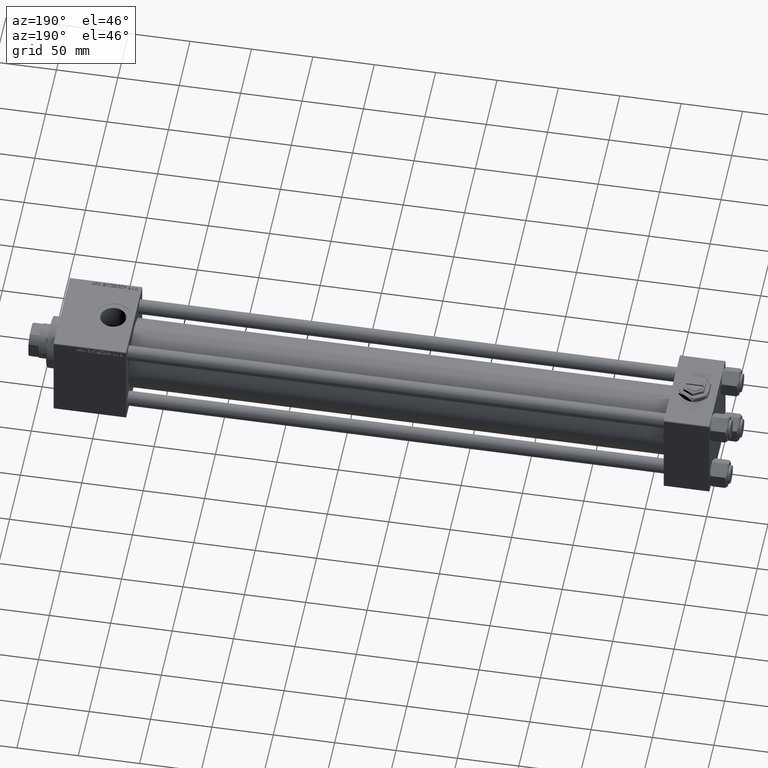
[diagram: clean part render]
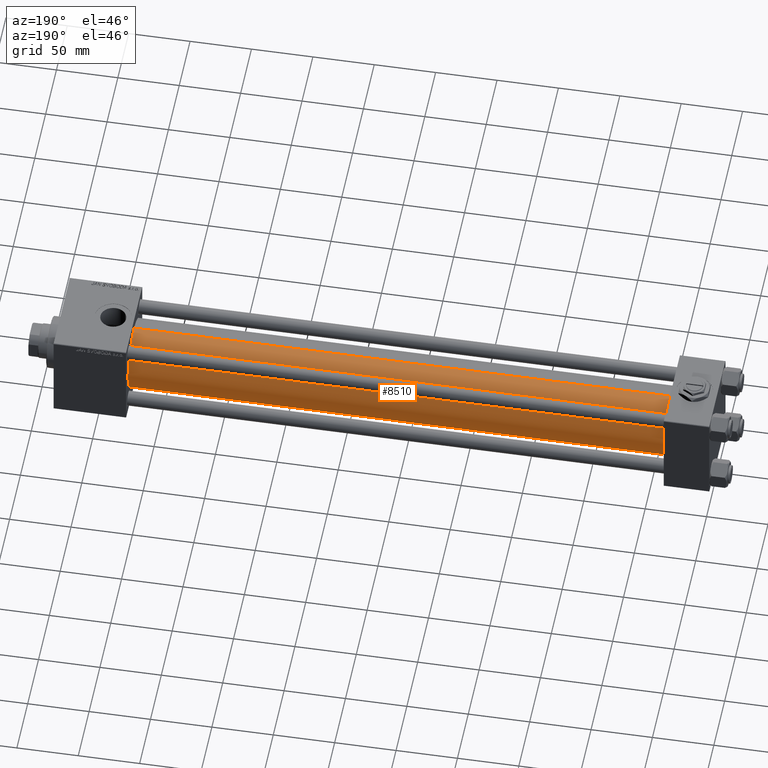
[diagram: same view with one face highlighted and labeled with its STEP entity id]
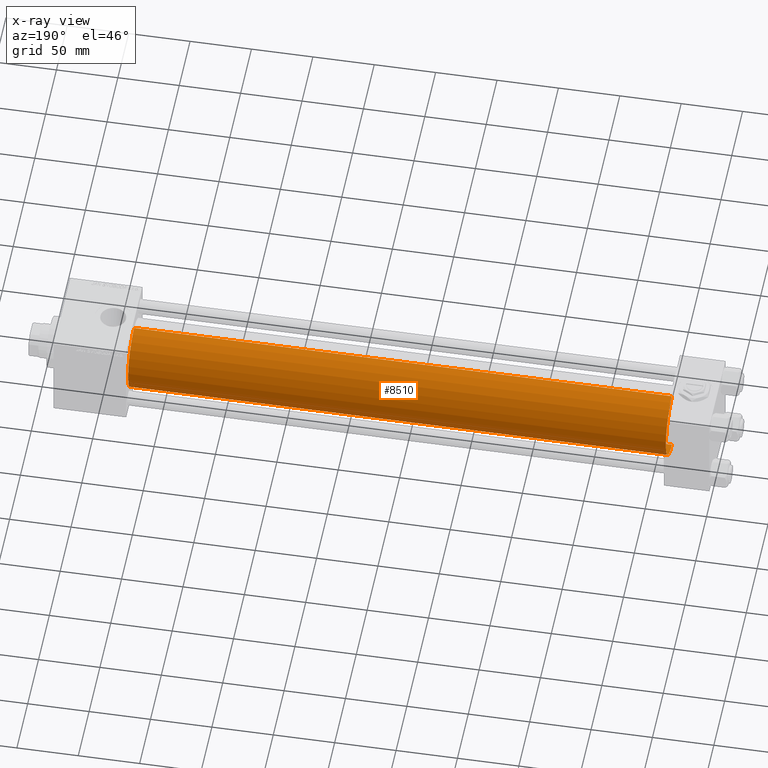
[diagram: x-ray of the same camera — body ghosted, the highlighted face saturated]
A machine part, auxiliary view. The second image highlights one B-rep face of the part: STEP entity #8510.
The next image is the same camera in x-ray: the body ghosted, the highlighted face saturated — about 0% of this face is hidden behind the body in this view.
In plain terms, the highlighted cylindrical surface (edge-blend (fillet) strip) has radius 28 mm, axis along (-1, -0, -0).
Its self-contained STEP definition (entity closure, byte-faithful):
#273 = VERTEX_POINT ( 'NONE', #28562 ) ;
#749 = ORIENTED_EDGE ( 'NONE', *, *, #35267, .T. ) ;
#1447 = VERTEX_POINT ( 'NONE', #46308 ) ;
#1885 = DIRECTION ( 'NONE',  ( -1.000000000000000000, -0.000000000000000000, -0.000000000000000000 ) ) ;
#7993 = DIRECTION ( 'NONE',  ( 1.000000000000000000, 0.000000000000000000, 0.000000000000000000 ) ) ;
#8510 = ADVANCED_FACE ( 'NONE', ( #35041 ), #47457, .T. ) ;
#15540 = CIRCLE ( 'NONE', #32429, 28.00000000000000000 ) ;
#16554 = ORIENTED_EDGE ( 'NONE', *, *, #22856, .T. ) ;
#18313 = AXIS2_PLACEMENT_3D ( 'NONE', #43934, #7993, #40212 ) ;
#18594 = DIRECTION ( 'NONE',  ( 1.000000000000000000, -0.000000000000000000, 0.000000000000000000 ) ) ;
#18699 = VERTEX_POINT ( 'NONE', #38262 ) ;
#19788 = LINE ( 'NONE', #48589, #48987 ) ;
#22856 = EDGE_CURVE ( 'NONE', #1447, #43779, #19788, .T. ) ;
#24262 = DIRECTION ( 'NONE',  ( -1.000000000000000000, -0.000000000000000000, -0.000000000000000000 ) ) ;
#28562 = CARTESIAN_POINT ( 'NONE',  ( 475.0000000000000000, -2.602085213965210642E-15, 28.00000000000000000 ) ) ;
#29828 = DIRECTION ( 'NONE',  ( 0.000000000000000000, 0.000000000000000000, 1.000000000000000000 ) ) ;
#29977 = CARTESIAN_POINT ( 'NONE',  ( 36.99999999999997868, -2.602085213965210642E-15, 0.000000000000000000 ) ) ;
#30134 = CIRCLE ( 'NONE', #18313, 28.00000000000000000 ) ;
#30633 = LINE ( 'NONE', #38322, #42613 ) ;
#31249 = ORIENTED_EDGE ( 'NONE', *, *, #36746, .F. ) ;
#32429 = AXIS2_PLACEMENT_3D ( 'NONE', #29977, #18594, #50082 ) ;
#35041 = FACE_OUTER_BOUND ( 'NONE', #42942, .T. ) ;
#35267 = EDGE_CURVE ( 'NONE', #43779, #18699, #15540, .T. ) ;
#36746 = EDGE_CURVE ( 'NONE', #273, #18699, #30633, .T. ) ;
#38262 = CARTESIAN_POINT ( 'NONE',  ( 36.99999999999997868, -2.602085213965210642E-15, 28.00000000000000000 ) ) ;
#38322 = CARTESIAN_POINT ( 'NONE',  ( 475.0000000000000000, -2.602085213965210642E-15, 28.00000000000000000 ) ) ;
#40212 = DIRECTION ( 'NONE',  ( 0.000000000000000000, 0.000000000000000000, -1.000000000000000000 ) ) ;
#42613 = VECTOR ( 'NONE', #1885, 1000.000000000000000 ) ;
#42942 = EDGE_LOOP ( 'NONE', ( #44667, #16554, #749, #31249 ) ) ;
#43779 = VERTEX_POINT ( 'NONE', #45560 ) ;
#43934 = CARTESIAN_POINT ( 'NONE',  ( 475.0000000000000000, -2.602085213965210642E-15, 0.000000000000000000 ) ) ;
#44667 = ORIENTED_EDGE ( 'NONE', *, *, #49653, .F. ) ;
#45560 = CARTESIAN_POINT ( 'NONE',  ( 36.99999999999997868, 8.269258236473784371E-16, -28.00000000000000000 ) ) ;
#45968 = CARTESIAN_POINT ( 'NONE',  ( 475.0000000000000000, -2.602085213965210642E-15, 0.000000000000000000 ) ) ;
#46308 = CARTESIAN_POINT ( 'NONE',  ( 475.0000000000000000, 8.269258236473784371E-16, -28.00000000000000000 ) ) ;
#47457 = CYLINDRICAL_SURFACE ( 'NONE', #51985, 28.00000000000000000 ) ;
#48589 = CARTESIAN_POINT ( 'NONE',  ( 475.0000000000000000, 8.269258236473784371E-16, -28.00000000000000000 ) ) ;
#48987 = VECTOR ( 'NONE', #24262, 1000.000000000000000 ) ;
#49653 = EDGE_CURVE ( 'NONE', #1447, #273, #30134, .T. ) ;
#50082 = DIRECTION ( 'NONE',  ( 0.000000000000000000, 0.000000000000000000, 1.000000000000000000 ) ) ;
#50200 = DIRECTION ( 'NONE',  ( -1.000000000000000000, -0.000000000000000000, -0.000000000000000000 ) ) ;
#51985 = AXIS2_PLACEMENT_3D ( 'NONE', #45968, #50200, #29828 ) ;